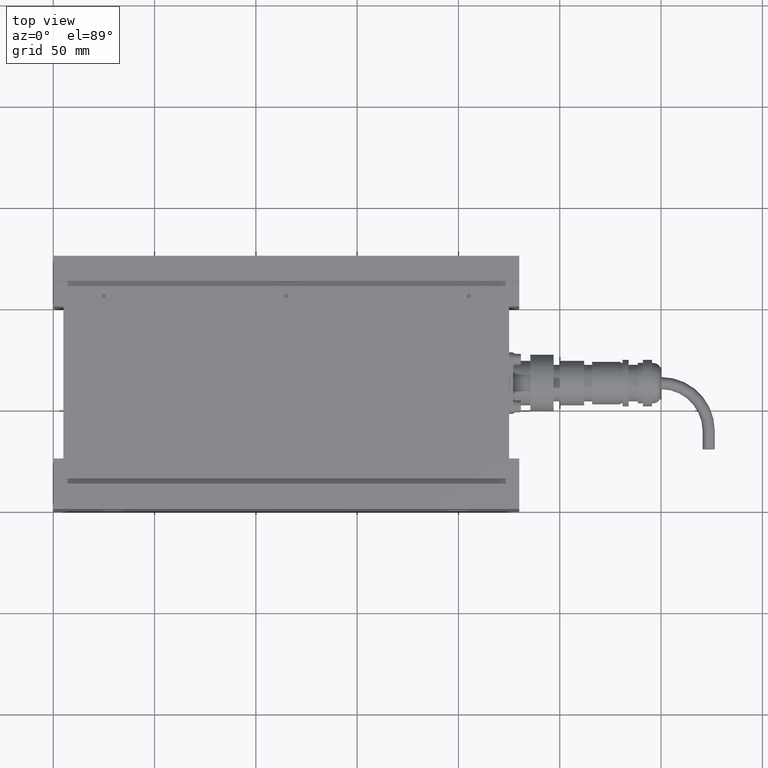
[diagram: clean part render]
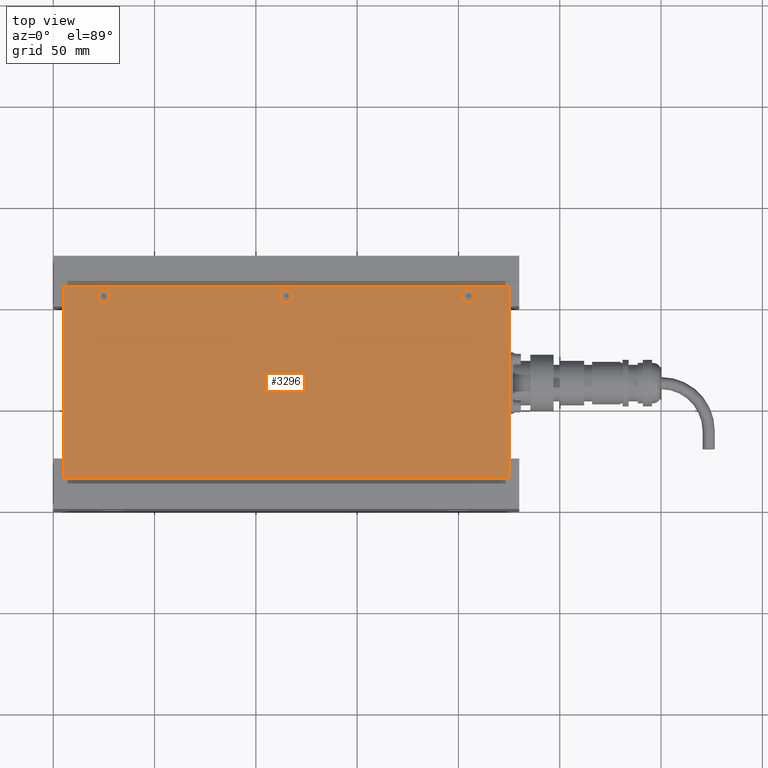
[diagram: same view with one face highlighted and labeled with its STEP entity id]
A machine part, top view. The second image highlights one B-rep face of the part: STEP entity #3296.
In plain terms, the highlighted planar face has unit normal (0, 0, 1).
Its self-contained STEP definition (entity closure, byte-faithful):
#2698=CARTESIAN_POINT('',(-87.0,42.500000000000000,1.0));
#2699=VERTEX_POINT('',#2698);
#2708=CARTESIAN_POINT('',(-93.0,42.500000000000000,1.0));
#2709=VERTEX_POINT('',#2708);
#2710=CARTESIAN_POINT('',(-90.0,42.500000000000000,1.0));
#2711=DIRECTION('',(0.0,0.0,-1.0));
#2712=DIRECTION('',(1.0,0.0,0.0));
#2713=AXIS2_PLACEMENT_3D('',#2710,#2711,#2712);
#2714=CIRCLE('',#2713,3.0);
#2715=EDGE_CURVE('',#2709,#2699,#2714,.T.);
#2762=CARTESIAN_POINT('',(3.0,42.500000000000000,1.0));
#2763=VERTEX_POINT('',#2762);
#2772=CARTESIAN_POINT('',(-3.0,42.500000000000000,1.0));
#2773=VERTEX_POINT('',#2772);
#2774=CARTESIAN_POINT('',(0.0,42.500000000000000,1.0));
#2775=DIRECTION('',(0.0,0.0,-1.0));
#2776=DIRECTION('',(1.0,0.0,0.0));
#2777=AXIS2_PLACEMENT_3D('',#2774,#2775,#2776);
#2778=CIRCLE('',#2777,3.0);
#2779=EDGE_CURVE('',#2773,#2763,#2778,.T.);
#2836=CARTESIAN_POINT('',(93.0,42.500000000000000,1.0));
#2837=VERTEX_POINT('',#2836);
#2846=CARTESIAN_POINT('',(87.0,42.500000000000000,1.0));
#2847=VERTEX_POINT('',#2846);
#2848=CARTESIAN_POINT('',(90.0,42.500000000000000,1.0));
#2849=DIRECTION('',(0.0,0.0,-1.0));
#2850=DIRECTION('',(1.0,0.0,0.0));
#2851=AXIS2_PLACEMENT_3D('',#2848,#2849,#2850);
#2852=CIRCLE('',#2851,3.0);
#2853=EDGE_CURVE('',#2847,#2837,#2852,.T.);
#3043=CARTESIAN_POINT('',(90.0,42.500000000000000,1.0));
#3044=DIRECTION('',(0.0,0.0,-1.0));
#3045=DIRECTION('',(1.0,0.0,0.0));
#3046=AXIS2_PLACEMENT_3D('',#3043,#3044,#3045);
#3047=CIRCLE('',#3046,3.0);
#3048=EDGE_CURVE('',#2837,#2847,#3047,.T.);
#3079=CARTESIAN_POINT('',(0.0,42.500000000000000,1.0));
#3080=DIRECTION('',(0.0,0.0,-1.0));
#3081=DIRECTION('',(1.0,0.0,0.0));
#3082=AXIS2_PLACEMENT_3D('',#3079,#3080,#3081);
#3083=CIRCLE('',#3082,3.0);
#3084=EDGE_CURVE('',#2763,#2773,#3083,.T.);
#3121=CARTESIAN_POINT('',(-90.0,42.500000000000000,1.0));
#3122=DIRECTION('',(0.0,0.0,-1.0));
#3123=DIRECTION('',(1.0,0.0,0.0));
#3124=AXIS2_PLACEMENT_3D('',#3121,#3122,#3123);
#3125=CIRCLE('',#3124,3.0);
#3126=EDGE_CURVE('',#2699,#2709,#3125,.T.);
#3154=CARTESIAN_POINT('',(-110.0,-47.500000000000000,1.0));
#3155=VERTEX_POINT('',#3154);
#3156=CARTESIAN_POINT('',(-110.0,47.500000000000000,1.0));
#3157=VERTEX_POINT('',#3156);
#3158=CARTESIAN_POINT('',(-110.0,-47.500000000000000,1.0));
#3159=DIRECTION('',(0.0,1.0,0.0));
#3160=VECTOR('',#3159,95.0);
#3161=LINE('',#3158,#3160);
#3162=EDGE_CURVE('',#3155,#3157,#3161,.T.);
#3194=CARTESIAN_POINT('',(110.0,47.500000000000000,1.0));
#3195=VERTEX_POINT('',#3194);
#3196=CARTESIAN_POINT('',(-110.0,47.500000000000000,1.0));
#3197=DIRECTION('',(1.0,0.0,0.0));
#3198=VECTOR('',#3197,220.0);
#3199=LINE('',#3196,#3198);
#3200=EDGE_CURVE('',#3157,#3195,#3199,.T.);
#3225=CARTESIAN_POINT('',(110.0,-47.500000000000000,1.0));
#3226=VERTEX_POINT('',#3225);
#3227=CARTESIAN_POINT('',(110.0,47.500000000000000,1.0));
#3228=DIRECTION('',(0.0,-1.0,0.0));
#3229=VECTOR('',#3228,95.0);
#3230=LINE('',#3227,#3229);
#3231=EDGE_CURVE('',#3195,#3226,#3230,.T.);
#3256=CARTESIAN_POINT('',(110.0,-47.500000000000000,1.0));
#3257=DIRECTION('',(-1.0,0.0,0.0));
#3258=VECTOR('',#3257,220.0);
#3259=LINE('',#3256,#3258);
#3260=EDGE_CURVE('',#3226,#3155,#3259,.T.);
#3273=CARTESIAN_POINT('',(0.0,0.0,1.0));
#3274=DIRECTION('',(0.0,0.0,1.0));
#3275=DIRECTION('',(1.0,0.0,0.0));
#3276=AXIS2_PLACEMENT_3D('',#3273,#3274,#3275);
#3277=PLANE('',#3276);
#3278=ORIENTED_EDGE('',*,*,#3162,.F.);
#3279=ORIENTED_EDGE('',*,*,#3260,.F.);
#3280=ORIENTED_EDGE('',*,*,#3231,.F.);
#3281=ORIENTED_EDGE('',*,*,#3200,.F.);
#3282=EDGE_LOOP('',(#3278,#3279,#3280,#3281));
#3283=FACE_OUTER_BOUND('',#3282,.T.);
#3284=ORIENTED_EDGE('',*,*,#3048,.T.);
#3285=ORIENTED_EDGE('',*,*,#2853,.T.);
#3286=EDGE_LOOP('',(#3284,#3285));
#3287=FACE_BOUND('',#3286,.T.);
#3288=ORIENTED_EDGE('',*,*,#3084,.T.);
#3289=ORIENTED_EDGE('',*,*,#2779,.T.);
#3290=EDGE_LOOP('',(#3288,#3289));
#3291=FACE_BOUND('',#3290,.T.);
#3292=ORIENTED_EDGE('',*,*,#3126,.T.);
#3293=ORIENTED_EDGE('',*,*,#2715,.T.);
#3294=EDGE_LOOP('',(#3292,#3293));
#3295=FACE_BOUND('',#3294,.T.);
#3296=ADVANCED_FACE('',(#3283,#3287,#3291,#3295),#3277,.T.);